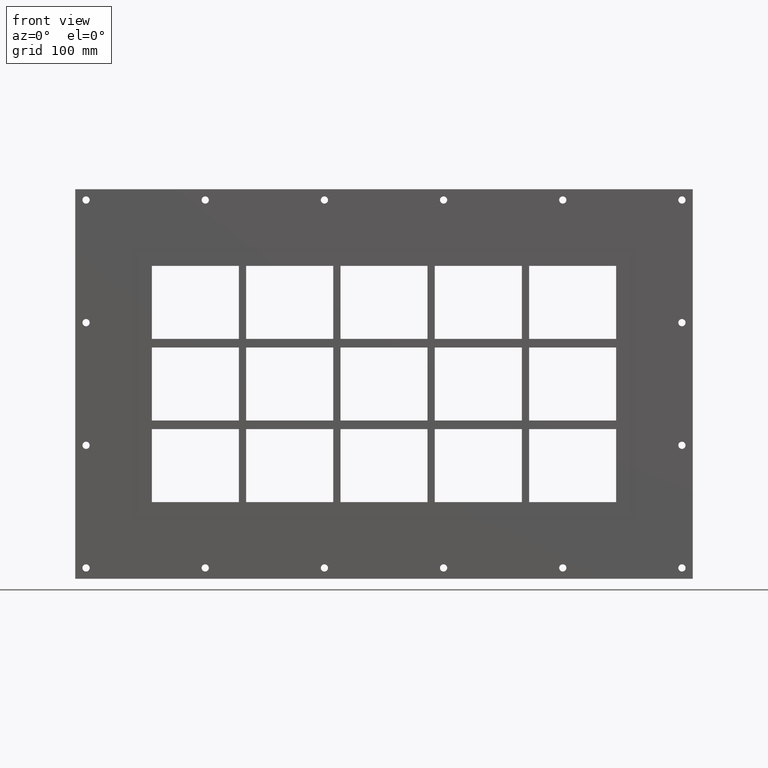
[diagram: clean part render]
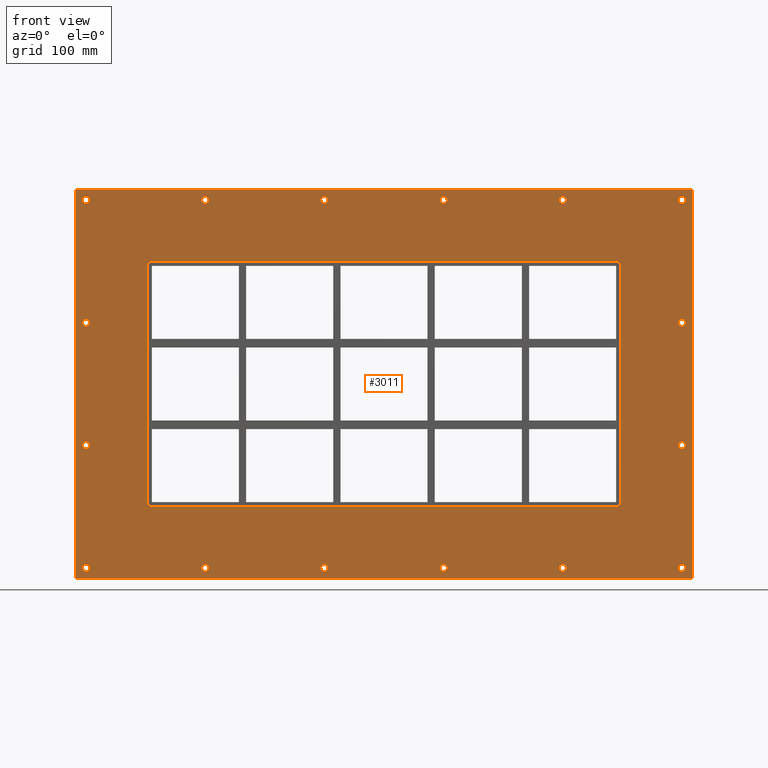
[diagram: same view with one face highlighted and labeled with its STEP entity id]
A machine part, front view. The second image highlights one B-rep face of the part: STEP entity #3011.
In plain terms, the highlighted planar face has unit normal (0, 1, 0).
Its self-contained STEP definition (entity closure, byte-faithful):
#84=CARTESIAN_POINT('',(-407.25000000000017,0.0,-254.5));
#85=VERTEX_POINT('',#84);
#86=CARTESIAN_POINT('',(-412.25000000000017,0.0,-254.5));
#87=DIRECTION('',(0.0,1.0,0.0));
#88=DIRECTION('',(1.0,0.0,0.0));
#89=AXIS2_PLACEMENT_3D('',#86,#87,#88);
#90=CIRCLE('',#89,5.0);
#91=EDGE_CURVE('',#85,#85,#90,.T.);
#112=CARTESIAN_POINT('',(417.25,0.0,-84.800000000000011));
#113=VERTEX_POINT('',#112);
#114=CARTESIAN_POINT('',(412.25,0.0,-84.800000000000011));
#115=DIRECTION('',(0.0,1.0,0.0));
#116=DIRECTION('',(1.0,0.0,0.0));
#117=AXIS2_PLACEMENT_3D('',#114,#115,#116);
#118=CIRCLE('',#117,5.0);
#119=EDGE_CURVE('',#113,#113,#118,.T.);
#140=CARTESIAN_POINT('',(-407.25000000000017,0.0,-84.800000000000011));
#141=VERTEX_POINT('',#140);
#142=CARTESIAN_POINT('',(-412.25000000000017,0.0,-84.800000000000011));
#143=DIRECTION('',(0.0,1.0,0.0));
#144=DIRECTION('',(1.0,0.0,0.0));
#145=AXIS2_PLACEMENT_3D('',#142,#143,#144);
#146=CIRCLE('',#145,5.0);
#147=EDGE_CURVE('',#141,#141,#146,.T.);
#168=CARTESIAN_POINT('',(417.25,0.0,84.899999999999977));
#169=VERTEX_POINT('',#168);
#170=CARTESIAN_POINT('',(412.25,0.0,84.899999999999977));
#171=DIRECTION('',(0.0,1.0,0.0));
#172=DIRECTION('',(1.0,0.0,0.0));
#173=AXIS2_PLACEMENT_3D('',#170,#171,#172);
#174=CIRCLE('',#173,5.0);
#175=EDGE_CURVE('',#169,#169,#174,.T.);
#196=CARTESIAN_POINT('',(-407.25000000000017,0.0,84.899999999999977));
#197=VERTEX_POINT('',#196);
#198=CARTESIAN_POINT('',(-412.25000000000017,0.0,84.899999999999977));
#199=DIRECTION('',(0.0,1.0,0.0));
#200=DIRECTION('',(1.0,0.0,0.0));
#201=AXIS2_PLACEMENT_3D('',#198,#199,#200);
#202=CIRCLE('',#201,5.0);
#203=EDGE_CURVE('',#197,#197,#202,.T.);
#224=CARTESIAN_POINT('',(-242.35000000000008,0.0,254.59999999999997));
#225=VERTEX_POINT('',#224);
#226=CARTESIAN_POINT('',(-247.35000000000008,0.0,254.59999999999997));
#227=DIRECTION('',(0.0,1.0,0.0));
#228=DIRECTION('',(1.0,0.0,0.0));
#229=AXIS2_PLACEMENT_3D('',#226,#227,#228);
#230=CIRCLE('',#229,5.0);
#231=EDGE_CURVE('',#225,#225,#230,.T.);
#252=CARTESIAN_POINT('',(-242.35000000000008,0.0,-254.5));
#253=VERTEX_POINT('',#252);
#254=CARTESIAN_POINT('',(-247.35000000000008,0.0,-254.5));
#255=DIRECTION('',(0.0,1.0,0.0));
#256=DIRECTION('',(1.0,0.0,0.0));
#257=AXIS2_PLACEMENT_3D('',#254,#255,#256);
#258=CIRCLE('',#257,5.0);
#259=EDGE_CURVE('',#253,#253,#258,.T.);
#280=CARTESIAN_POINT('',(-77.450000000000045,0.0,254.59999999999997));
#281=VERTEX_POINT('',#280);
#282=CARTESIAN_POINT('',(-82.450000000000045,0.0,254.59999999999997));
#283=DIRECTION('',(0.0,1.0,0.0));
#284=DIRECTION('',(1.0,0.0,0.0));
#285=AXIS2_PLACEMENT_3D('',#282,#283,#284);
#286=CIRCLE('',#285,5.0);
#287=EDGE_CURVE('',#281,#281,#286,.T.);
#308=CARTESIAN_POINT('',(-77.450000000000045,0.0,-254.5));
#309=VERTEX_POINT('',#308);
#310=CARTESIAN_POINT('',(-82.450000000000045,0.0,-254.5));
#311=DIRECTION('',(0.0,1.0,0.0));
#312=DIRECTION('',(1.0,0.0,0.0));
#313=AXIS2_PLACEMENT_3D('',#310,#311,#312);
#314=CIRCLE('',#313,5.0);
#315=EDGE_CURVE('',#309,#309,#314,.T.);
#336=CARTESIAN_POINT('',(87.449999999999974,0.0,254.59999999999997));
#337=VERTEX_POINT('',#336);
#338=CARTESIAN_POINT('',(82.449999999999974,0.0,254.59999999999997));
#339=DIRECTION('',(0.0,1.0,0.0));
#340=DIRECTION('',(1.0,0.0,0.0));
#341=AXIS2_PLACEMENT_3D('',#338,#339,#340);
#342=CIRCLE('',#341,5.0);
#343=EDGE_CURVE('',#337,#337,#342,.T.);
#364=CARTESIAN_POINT('',(87.449999999999974,0.0,-254.5));
#365=VERTEX_POINT('',#364);
#366=CARTESIAN_POINT('',(82.449999999999974,0.0,-254.5));
#367=DIRECTION('',(0.0,1.0,0.0));
#368=DIRECTION('',(1.0,0.0,0.0));
#369=AXIS2_PLACEMENT_3D('',#366,#367,#368);
#370=CIRCLE('',#369,5.0);
#371=EDGE_CURVE('',#365,#365,#370,.T.);
#392=CARTESIAN_POINT('',(252.34999999999999,0.0,254.59999999999997));
#393=VERTEX_POINT('',#392);
#394=CARTESIAN_POINT('',(247.34999999999999,0.0,254.59999999999997));
#395=DIRECTION('',(0.0,1.0,0.0));
#396=DIRECTION('',(1.0,0.0,0.0));
#397=AXIS2_PLACEMENT_3D('',#394,#395,#396);
#398=CIRCLE('',#397,5.0);
#399=EDGE_CURVE('',#393,#393,#398,.T.);
#420=CARTESIAN_POINT('',(252.34999999999999,0.0,-254.5));
#421=VERTEX_POINT('',#420);
#422=CARTESIAN_POINT('',(247.34999999999999,0.0,-254.5));
#423=DIRECTION('',(0.0,1.0,0.0));
#424=DIRECTION('',(1.0,0.0,0.0));
#425=AXIS2_PLACEMENT_3D('',#422,#423,#424);
#426=CIRCLE('',#425,5.0);
#427=EDGE_CURVE('',#421,#421,#426,.T.);
#448=CARTESIAN_POINT('',(417.25,0.0,-254.5));
#449=VERTEX_POINT('',#448);
#450=CARTESIAN_POINT('',(412.25,0.0,-254.5));
#451=DIRECTION('',(0.0,1.0,0.0));
#452=DIRECTION('',(1.0,0.0,0.0));
#453=AXIS2_PLACEMENT_3D('',#450,#451,#452);
#454=CIRCLE('',#453,5.0);
#455=EDGE_CURVE('',#449,#449,#454,.T.);
#476=CARTESIAN_POINT('',(-407.25000000000017,0.0,254.59999999999997));
#477=VERTEX_POINT('',#476);
#478=CARTESIAN_POINT('',(-412.25000000000017,0.0,254.59999999999997));
#479=DIRECTION('',(0.0,1.0,0.0));
#480=DIRECTION('',(1.0,0.0,0.0));
#481=AXIS2_PLACEMENT_3D('',#478,#479,#480);
#482=CIRCLE('',#481,5.0);
#483=EDGE_CURVE('',#477,#477,#482,.T.);
#504=CARTESIAN_POINT('',(417.25,0.0,254.59999999999997));
#505=VERTEX_POINT('',#504);
#506=CARTESIAN_POINT('',(412.25,0.0,254.59999999999997));
#507=DIRECTION('',(0.0,1.0,0.0));
#508=DIRECTION('',(1.0,0.0,0.0));
#509=AXIS2_PLACEMENT_3D('',#506,#507,#508);
#510=CIRCLE('',#509,5.0);
#511=EDGE_CURVE('',#505,#505,#510,.T.);
#2854=CARTESIAN_POINT('',(0.0,0.0,6.870874E-015));
#2855=DIRECTION('',(0.0,1.0,0.0));
#2856=DIRECTION('',(0.0,0.0,1.0));
#2857=AXIS2_PLACEMENT_3D('',#2854,#2855,#2856);
#2858=PLANE('',#2857);
#2859=CARTESIAN_POINT('',(-427.25000000000017,0.0,269.5));
#2860=VERTEX_POINT('',#2859);
#2861=CARTESIAN_POINT('',(427.25000000000017,0.0,269.5));
#2862=VERTEX_POINT('',#2861);
#2863=CARTESIAN_POINT('',(-427.25000000000017,0.0,269.5));
#2864=DIRECTION('',(1.0,0.0,0.0));
#2865=VECTOR('',#2864,854.50000000000034);
#2866=LINE('',#2863,#2865);
#2867=EDGE_CURVE('',#2860,#2862,#2866,.T.);
#2868=ORIENTED_EDGE('',*,*,#2867,.F.);
#2869=CARTESIAN_POINT('',(-427.25000000000017,0.0,-269.5));
#2870=VERTEX_POINT('',#2869);
#2871=CARTESIAN_POINT('',(-427.25000000000017,0.0,-269.5));
#2872=DIRECTION('',(0.0,0.0,1.0));
#2873=VECTOR('',#2872,539.0);
#2874=LINE('',#2871,#2873);
#2875=EDGE_CURVE('',#2870,#2860,#2874,.T.);
#2876=ORIENTED_EDGE('',*,*,#2875,.F.);
#2877=CARTESIAN_POINT('',(427.25000000000017,0.0,-269.5));
#2878=VERTEX_POINT('',#2877);
#2879=CARTESIAN_POINT('',(427.25000000000017,0.0,-269.5));
#2880=DIRECTION('',(-1.0,0.0,0.0));
#2881=VECTOR('',#2880,854.50000000000034);
#2882=LINE('',#2879,#2881);
#2883=EDGE_CURVE('',#2878,#2870,#2882,.T.);
#2884=ORIENTED_EDGE('',*,*,#2883,.F.);
#2885=CARTESIAN_POINT('',(427.25000000000017,0.0,269.5));
#2886=DIRECTION('',(0.0,0.0,-1.0));
#2887=VECTOR('',#2886,539.0);
#2888=LINE('',#2885,#2887);
#2889=EDGE_CURVE('',#2862,#2878,#2888,.T.);
#2890=ORIENTED_EDGE('',*,*,#2889,.F.);
#2891=EDGE_LOOP('',(#2868,#2876,#2884,#2890));
#2892=FACE_OUTER_BOUND('',#2891,.T.);
#2893=ORIENTED_EDGE('',*,*,#91,.T.);
#2894=EDGE_LOOP('',(#2893));
#2895=FACE_BOUND('',#2894,.T.);
#2896=ORIENTED_EDGE('',*,*,#119,.T.);
#2897=EDGE_LOOP('',(#2896));
#2898=FACE_BOUND('',#2897,.T.);
#2899=ORIENTED_EDGE('',*,*,#147,.T.);
#2900=EDGE_LOOP('',(#2899));
#2901=FACE_BOUND('',#2900,.T.);
#2902=ORIENTED_EDGE('',*,*,#175,.T.);
#2903=EDGE_LOOP('',(#2902));
#2904=FACE_BOUND('',#2903,.T.);
#2905=ORIENTED_EDGE('',*,*,#203,.T.);
#2906=EDGE_LOOP('',(#2905));
#2907=FACE_BOUND('',#2906,.T.);
#2908=ORIENTED_EDGE('',*,*,#231,.T.);
#2909=EDGE_LOOP('',(#2908));
#2910=FACE_BOUND('',#2909,.T.);
#2911=ORIENTED_EDGE('',*,*,#259,.T.);
#2912=EDGE_LOOP('',(#2911));
#2913=FACE_BOUND('',#2912,.T.);
#2914=ORIENTED_EDGE('',*,*,#287,.T.);
#2915=EDGE_LOOP('',(#2914));
#2916=FACE_BOUND('',#2915,.T.);
#2917=ORIENTED_EDGE('',*,*,#315,.T.);
#2918=EDGE_LOOP('',(#2917));
#2919=FACE_BOUND('',#2918,.T.);
#2920=ORIENTED_EDGE('',*,*,#343,.T.);
#2921=EDGE_LOOP('',(#2920));
#2922=FACE_BOUND('',#2921,.T.);
#2923=ORIENTED_EDGE('',*,*,#371,.T.);
#2924=EDGE_LOOP('',(#2923));
#2925=FACE_BOUND('',#2924,.T.);
#2926=ORIENTED_EDGE('',*,*,#399,.T.);
#2927=EDGE_LOOP('',(#2926));
#2928=FACE_BOUND('',#2927,.T.);
#2929=ORIENTED_EDGE('',*,*,#427,.T.);
#2930=EDGE_LOOP('',(#2929));
#2931=FACE_BOUND('',#2930,.T.);
#2932=ORIENTED_EDGE('',*,*,#455,.T.);
#2933=EDGE_LOOP('',(#2932));
#2934=FACE_BOUND('',#2933,.T.);
#2935=ORIENTED_EDGE('',*,*,#483,.T.);
#2936=EDGE_LOOP('',(#2935));
#2937=FACE_BOUND('',#2936,.T.);
#2938=ORIENTED_EDGE('',*,*,#511,.T.);
#2939=EDGE_LOOP('',(#2938));
#2940=FACE_BOUND('',#2939,.T.);
#2941=CARTESIAN_POINT('',(-327.25000000000011,0.0,-163.5));
#2942=VERTEX_POINT('',#2941);
#2943=CARTESIAN_POINT('',(-321.25,0.0,-169.50000000000003));
#2944=VERTEX_POINT('',#2943);
#2945=CARTESIAN_POINT('',(-321.25,0.0,-163.5));
#2946=DIRECTION('',(0.0,-1.0,0.0));
#2947=DIRECTION('',(-0.707106781186552,0.0,-0.707106781186543));
#2948=AXIS2_PLACEMENT_3D('',#2945,#2946,#2947);
#2949=CIRCLE('',#2948,6.0);
#2950=EDGE_CURVE('',#2942,#2944,#2949,.T.);
#2951=ORIENTED_EDGE('',*,*,#2950,.F.);
#2952=CARTESIAN_POINT('',(-327.25000000000011,0.0,163.5));
#2953=VERTEX_POINT('',#2952);
#2954=CARTESIAN_POINT('',(-327.25000000000011,0.0,163.5));
#2955=DIRECTION('',(0.0,0.0,-1.0));
#2956=VECTOR('',#2955,327.0);
#2957=LINE('',#2954,#2956);
#2958=EDGE_CURVE('',#2953,#2942,#2957,.T.);
#2959=ORIENTED_EDGE('',*,*,#2958,.F.);
#2960=CARTESIAN_POINT('',(-321.25000000000011,0.0,169.50000000000003));
#2961=VERTEX_POINT('',#2960);
#2962=CARTESIAN_POINT('',(-321.25000000000011,0.0,163.5));
#2963=DIRECTION('',(0.0,-1.0,0.0));
#2964=DIRECTION('',(-0.707106781186543,0.0,0.707106781186552));
#2965=AXIS2_PLACEMENT_3D('',#2962,#2963,#2964);
#2966=CIRCLE('',#2965,6.000000000000001);
#2967=EDGE_CURVE('',#2961,#2953,#2966,.T.);
#2968=ORIENTED_EDGE('',*,*,#2967,.F.);
#2969=CARTESIAN_POINT('',(321.24999999999989,0.0,169.50000000000003));
#2970=VERTEX_POINT('',#2969);
#2971=CARTESIAN_POINT('',(321.24999999999983,0.0,169.50000000000003));
#2972=DIRECTION('',(-1.0,0.0,0.0));
#2973=VECTOR('',#2972,642.5);
#2974=LINE('',#2971,#2973);
#2975=EDGE_CURVE('',#2970,#2961,#2974,.T.);
#2976=ORIENTED_EDGE('',*,*,#2975,.F.);
#2977=CARTESIAN_POINT('',(327.24999999999994,0.0,163.5));
#2978=VERTEX_POINT('',#2977);
#2979=CARTESIAN_POINT('',(321.24999999999989,0.0,163.5));
#2980=DIRECTION('',(0.0,-1.0,0.0));
#2981=DIRECTION('',(0.707106781186552,0.0,0.707106781186543));
#2982=AXIS2_PLACEMENT_3D('',#2979,#2980,#2981);
#2983=CIRCLE('',#2982,6.0);
#2984=EDGE_CURVE('',#2978,#2970,#2983,.T.);
#2985=ORIENTED_EDGE('',*,*,#2984,.F.);
#2986=CARTESIAN_POINT('',(327.24999999999994,0.0,-163.5));
#2987=VERTEX_POINT('',#2986);
#2988=CARTESIAN_POINT('',(327.24999999999994,0.0,-163.5));
#2989=DIRECTION('',(0.0,0.0,1.0));
#2990=VECTOR('',#2989,327.0);
#2991=LINE('',#2988,#2990);
#2992=EDGE_CURVE('',#2987,#2978,#2991,.T.);
#2993=ORIENTED_EDGE('',*,*,#2992,.F.);
#2994=CARTESIAN_POINT('',(321.25,0.0,-169.50000000000003));
#2995=VERTEX_POINT('',#2994);
#2996=CARTESIAN_POINT('',(321.25,0.0,-163.5));
#2997=DIRECTION('',(0.0,-1.0,0.0));
#2998=DIRECTION('',(0.707106781186543,0.0,-0.707106781186552));
#2999=AXIS2_PLACEMENT_3D('',#2996,#2997,#2998);
#3000=CIRCLE('',#2999,6.000000000000001);
#3001=EDGE_CURVE('',#2995,#2987,#3000,.T.);
#3002=ORIENTED_EDGE('',*,*,#3001,.F.);
#3003=CARTESIAN_POINT('',(-321.25,0.0,-169.50000000000003));
#3004=DIRECTION('',(1.0,0.0,0.0));
#3005=VECTOR('',#3004,642.5);
#3006=LINE('',#3003,#3005);
#3007=EDGE_CURVE('',#2944,#2995,#3006,.T.);
#3008=ORIENTED_EDGE('',*,*,#3007,.F.);
#3009=EDGE_LOOP('',(#2951,#2959,#2968,#2976,#2985,#2993,#3002,#3008));
#3010=FACE_BOUND('',#3009,.T.);
#3011=ADVANCED_FACE('',(#2892,#2895,#2898,#2901,#2904,#2907,#2910,#2913,#2916,#2919,#2922,#2925,#2928,#2931,#2934,#2937,#2940,#3010),#2858,.F.);